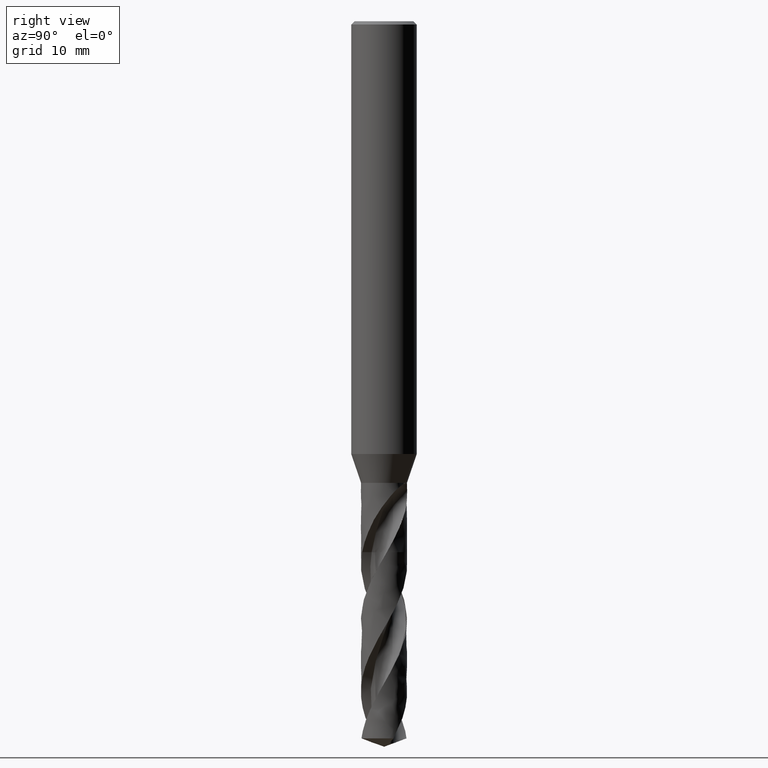
[diagram: clean part render]
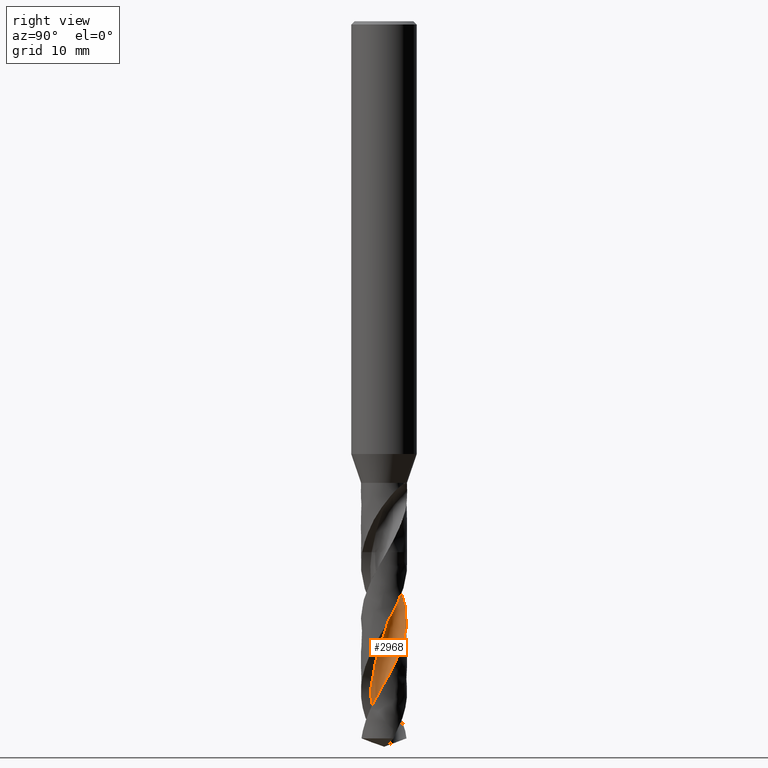
[diagram: same view with one face highlighted and labeled with its STEP entity id]
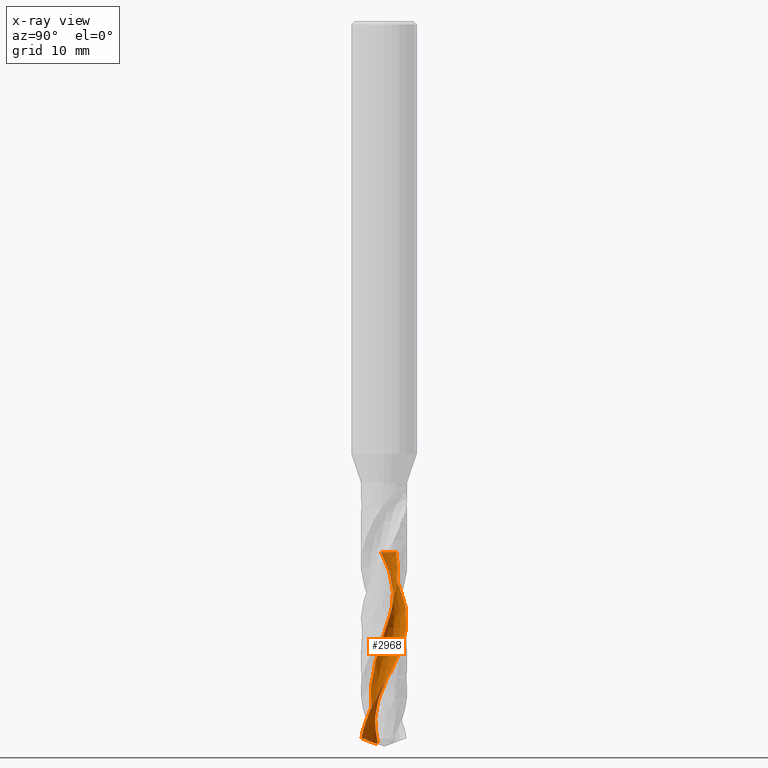
[diagram: x-ray of the same camera — body ghosted, the highlighted face saturated]
A machine part, right view. The second image highlights one B-rep face of the part: STEP entity #2968.
The next image is the same camera in x-ray: the body ghosted, the highlighted face saturated — about 0% of this face is hidden behind the body in this view.
In plain terms, the highlighted face is a freeform B-spline surface patch.
Its self-contained STEP definition (entity closure, byte-faithful):
#1539 = VERTEX_POINT('', #1540);
#1540 = CARTESIAN_POINT('', (-0.560653576666516, 1.12535612456712, -48.3));
#1546 = EDGE_CURVE('', #1539, #1547, #1549, .T.);
#1547 = VERTEX_POINT('', #1548);
#1548 = CARTESIAN_POINT('', (-2.08448666267482, -0.254784915430249, -48.3));
#1549 = B_SPLINE_CURVE_WITH_KNOTS('', 3, (#1550, #1551, #1552, #1553, #1554, #1555, #1556, #1557, #1558, #1559, #1560, #1561, #1562, #1563, #1564, #1565, #1566, #1567, #1568, #1569, #1570, #1571, #1572, #1573, #1574, #1575, #1576, #1577, #1578, #1579, #1580, #1581, #1582, #1583, #1584, #1585, #1586, #1587, #1588, #1589, #1590, #1591, #1592, #1593, #1594, #1595, #1596, #1597, #1598, #1599, #1600, #1601, #1602, #1603, #1604, #1605, #1606, #1607, #1608, #1609, #1610), .UNSPECIFIED., .F., .U., (4, 3, 3, 3, 3, 3, 3, 3, 3, 3, 3, 3, 3, 3, 3, 3, 3, 3, 3, 3, 4), (0., 0.132213928992966, 0.264236099309341, 0.39607163186552, 0.527724449058752, 0.65919737179293, 0.790492188199215, 0.921609697640625, 1.05254973227521, 1.18331115733999, 1.20922925857439, 1.34144290770711, 1.47346480644018, 1.60530007388277, 1.7369526307869, 1.86842529652929, 1.99971985779418, 2.13083711254439, 2.26177689155326, 2.3925380586584, 2.40342444036958), .UNSPECIFIED.);
#1550 = CARTESIAN_POINT('', (-0.560653576666513, 1.12535612456712, -48.3));
#1551 = CARTESIAN_POINT('', (-0.55540932388341, 1.08159794649404, -48.3));
#1552 = CARTESIAN_POINT('', (-0.55245988058709, 1.03750378603265, -48.3));
#1553 = CARTESIAN_POINT('', (-0.551829550536965, 0.993436984247669, -48.3));
#1554 = CARTESIAN_POINT('', (-0.551200134696539, 0.949434095483477, -48.3));
#1555 = CARTESIAN_POINT('', (-0.552881366382323, 0.90533788673366, -48.3));
#1556 = CARTESIAN_POINT('', (-0.556859432121488, 0.861510664863356, -48.3));
#1557 = CARTESIAN_POINT('', (-0.560831874128837, 0.817745400878655, -48.3));
#1558 = CARTESIAN_POINT('', (-0.567105499460781, 0.774128754200453, -48.3));
#1559 = CARTESIAN_POINT('', (-0.575628907583493, 0.73101808103097, -48.3));
#1560 = CARTESIAN_POINT('', (-0.584140502824058, 0.687967156414416, -48.3));
#1561 = CARTESIAN_POINT('', (-0.594918829086155, 0.645303471542164, -48.3));
#1562 = CARTESIAN_POINT('', (-0.607875822412483, 0.603375608636682, -48.3));
#1563 = CARTESIAN_POINT('', (-0.620815110904573, 0.561505037252776, -48.3));
#1564 = CARTESIAN_POINT('', (-0.635962267880023, 0.520254473386058, -48.3));
#1565 = CARTESIAN_POINT('', (-0.653193871292958, 0.4799600348304, -48.3));
#1566 = CARTESIAN_POINT('', (-0.670402131058062, 0.43972018313823, -48.3));
#1567 = CARTESIAN_POINT('', (-0.689735821643201, 0.400324789764808, -48.3));
#1568 = CARTESIAN_POINT('', (-0.711037833963802, 0.362093988838799, -48.3));
#1569 = CARTESIAN_POINT('', (-0.732311079001325, 0.323914816662977, -48.3));
#1570 = CARTESIAN_POINT('', (-0.755604825035069, 0.286793878400143, -48.3));
#1571 = CARTESIAN_POINT('', (-0.780730292720963, 0.251032013012238, -48.3));
#1572 = CARTESIAN_POINT('', (-0.805821751695566, 0.215318553288676, -48.3));
#1573 = CARTESIAN_POINT('', (-0.832807608374214, 0.180864198995624, -48.3));
#1574 = CARTESIAN_POINT('', (-0.861469751919173, 0.147947424452712, -48.3));
#1575 = CARTESIAN_POINT('', (-0.890092798688707, 0.115075550241137, -48.3));
#1576 = CARTESIAN_POINT('', (-0.920464506143395, 0.0836486731725949, -48.3));
#1577 = CARTESIAN_POINT('', (-0.952340065484604, 0.0539201071587813, -48.3));
#1578 = CARTESIAN_POINT('', (-0.958658090647599, 0.0480276355593198, -48.3));
#1579 = CARTESIAN_POINT('', (-0.965037056963397, 0.042199836450078, -48.3));
#1580 = CARTESIAN_POINT('', (-0.971474940496891, 0.036438558890381, -48.3));
#1581 = CARTESIAN_POINT('', (-1.00431592938558, 0.007049078428625, -48.3));
#1582 = CARTESIAN_POINT('', (-1.03874812602139, -0.0206530825710084, -48.3));
#1583 = CARTESIAN_POINT('', (-1.07448780625579, -0.0464396560103344, -48.3));
#1584 = CARTESIAN_POINT('', (-1.11017565297669, -0.0721888309980257, -48.3));
#1585 = CARTESIAN_POINT('', (-1.14726499277601, -0.0960985567143184, -48.3));
#1586 = CARTESIAN_POINT('', (-1.18545109044768, -0.117972384928194, -48.3));
#1587 = CARTESIAN_POINT('', (-1.2235832067666, -0.139815291447815, -48.3));
#1588 = CARTESIAN_POINT('', (-1.26291318591793, -0.159687763109905, -48.3));
#1589 = CARTESIAN_POINT('', (-1.30311879415282, -0.177426983122257, -48.3));
#1590 = CARTESIAN_POINT('', (-1.34326868142266, -0.195141618344036, -48.3));
#1591 = CARTESIAN_POINT('', (-1.38440118745553, -0.210777205090494, -48.3));
#1592 = CARTESIAN_POINT('', (-1.42618024180106, -0.224205993822735, -48.3));
#1593 = CARTESIAN_POINT('', (-1.46790220889512, -0.237616433345036, -48.3));
#1594 = CARTESIAN_POINT('', (-1.51038234894089, -0.248862565797842, -48.3));
#1595 = CARTESIAN_POINT('', (-1.55327452666382, -0.257852755816016, -48.3));
#1596 = CARTESIAN_POINT('', (-1.59610859885692, -0.266830766929269, -48.3));
#1597 = CARTESIAN_POINT('', (-1.63946969255266, -0.273583295268521, -48.3));
#1598 = CARTESIAN_POINT('', (-1.68300544898726, -0.278055468773699, -48.3));
#1599 = CARTESIAN_POINT('', (-1.72648241263438, -0.28252160283985, -48.3));
#1600 = CARTESIAN_POINT('', (-1.77025109367611, -0.284725626451488, -48.3));
#1601 = CARTESIAN_POINT('', (-1.81395677927016, -0.284649677624623, -48.3));
#1602 = CARTESIAN_POINT('', (-1.85760330637308, -0.284573831599439, -48.3));
#1603 = CARTESIAN_POINT('', (-1.90130467627924, -0.282223993294839, -48.3));
#1604 = CARTESIAN_POINT('', (-1.94470767784651, -0.277619155000391, -48.3));
#1605 = CARTESIAN_POINT('', (-1.98805147438993, -0.273020598058642, -48.3));
#1606 = CARTESIAN_POINT('', (-2.03121425214034, -0.266160841788318, -48.3));
#1607 = CARTESIAN_POINT('', (-2.07384810223631, -0.257095178506502, -48.3));
#1608 = CARTESIAN_POINT('', (-2.07739753802246, -0.256340426364594, -48.3));
#1609 = CARTESIAN_POINT('', (-2.08094379080993, -0.255570323400209, -48.3));
#1610 = CARTESIAN_POINT('', (-2.08448666233068, -0.25478491387789, -48.3));
#1859 = VERTEX_POINT('', #1860);
#1860 = CARTESIAN_POINT('', (-1.1143840650651, -0.581697537418241, -65.5424640990853));
#1885 = EDGE_CURVE('', #1859, #1539, #1886, .T.);
#1886 = B_SPLINE_CURVE_WITH_KNOTS('', 3, (#1887, #1888, #1889, #1890, #1891, #1892, #1893, #1894, #1895, #1896, #1897, #1898, #1899, #1900, #1901, #1902, #1903, #1904, #1905, #1906, #1907, #1908, #1909, #1910, #1911, #1912, #1913, #1914, #1915, #1916, #1917, #1918, #1919, #1920, #1921, #1922, #1923, #1924, #1925, #1926, #1927, #1928, #1929, #1930, #1931, #1932, #1933, #1934), .UNSPECIFIED., .F., .U., (4, 1, 1, 1, 1, 1, 1, 1, 1, 1, 1, 1, 1, 1, 1, 1, 1, 1, 1, 1, 1, 1, 1, 1, 1, 1, 1, 1, 1, 1, 1, 1, 1, 1, 1, 1, 1, 1, 1, 1, 1, 1, 1, 1, 1, 4), (0.507535900914695, 0.775806451612903, 1.16370967741935, 1.55161290322581, 1.93951612903226, 2.32741935483871, 2.71532258064516, 3.10322580645161, 3.49112903225807, 3.87903225806452, 4.26693548387097, 4.65483870967742, 5.04274193548387, 5.43064516129032, 5.81854838709677, 6.20645161290323, 6.59435483870968, 6.98225806451613, 7.37016129032258, 7.75806451612903, 8.14596774193548, 8.53387096774193, 8.92177419354839, 9.30967741935484, 9.69758064516129, 10.0854838709677, 10.4733870967742, 10.8612903225806, 11.2491935483871, 11.6370967741936, 12.025, 12.4129032258065, 12.8008064516129, 13.1887096774194, 13.5766129032258, 13.9645161290323, 14.3524193548387, 14.7403225806452, 15.1282258064516, 15.5161290322581, 15.9040322580645, 16.291935483871, 16.6798387096774, 17.0677419354839, 17.4556451612903, 17.75), .UNSPECIFIED.);
#1887 = CARTESIAN_POINT('', (-1.11438406506511, -0.581697537418236, -65.5424640990853));
#1888 = CARTESIAN_POINT('', (-1.0995417420191, -0.608467072957966, -65.4530405821859));
#1889 = CARTESIAN_POINT('', (-1.06090839098075, -0.672572839950614, -65.2343159900177));
#1890 = CARTESIAN_POINT('', (-0.990767162018504, -0.768600091178977, -64.8862903225806));
#1891 = CARTESIAN_POINT('', (-0.90207305816098, -0.86664777408632, -64.4983870967742));
#1892 = CARTESIAN_POINT('', (-0.803868672580281, -0.954699476826315, -64.1104838709677));
#1893 = CARTESIAN_POINT('', (-0.697257167428728, -1.03185381510442, -63.7225806451613));
#1894 = CARTESIAN_POINT('', (-0.583424300891223, -1.09732819671347, -63.3346774193548));
#1895 = CARTESIAN_POINT('', (-0.463626616468923, -1.15046676358356, -62.9467741935484));
#1896 = CARTESIAN_POINT('', (-0.339177961534545, -1.19074637897946, -62.5588709677419));
#1897 = CARTESIAN_POINT('', (-0.211435780800321, -1.21778142655439, -62.1709677419355));
#1898 = CARTESIAN_POINT('', (-0.0817869694306661, -1.23132716429445, -61.783064516129));
#1899 = CARTESIAN_POINT('', (0.0483664810049813, -1.23128166752406, -61.3951612903226));
#1900 = CARTESIAN_POINT('', (0.177621928879893, -1.21768633413588, -61.0072580645161));
#1901 = CARTESIAN_POINT('', (0.30459047435354, -1.19072495857125, -60.6193548387097));
#1902 = CARTESIAN_POINT('', (0.427911159804835, -1.15072138902621, -60.2314516129032));
#1903 = CARTESIAN_POINT('', (0.546264842185099, -1.09813579684918, -59.8435483870968));
#1904 = CARTESIAN_POINT('', (0.658387604956542, -1.03355959943169, -59.4556451612903));
#1905 = CARTESIAN_POINT('', (0.763083581980553, -0.957709090274114, -59.0677419354839));
#1906 = CARTESIAN_POINT('', (0.859237071722774, -0.871417841618717, -58.6798387096774));
#1907 = CARTESIAN_POINT('', (0.94582382712686, -0.775627956156164, -58.291935483871));
#1908 = CARTESIAN_POINT('', (1.02192141448335, -0.671380254697522, -57.9040322580645));
#1909 = CARTESIAN_POINT('', (1.086718543495, -0.559803496292857, -57.5161290322581));
#1910 = CARTESIAN_POINT('', (1.13952328044354, -0.442102735992004, -57.1282258064516));
#1911 = CARTESIAN_POINT('', (1.17977006681222, -0.319546933216794, -56.7403225806452));
#1912 = CARTESIAN_POINT('', (1.20702547682669, -0.193455930485919, -56.3524193548387));
#1913 = CARTESIAN_POINT('', (1.22099265905178, -0.0651869279513178, -55.9645161290323));
#1914 = CARTESIAN_POINT('', (1.22151441932947, 0.0638794161767352, -55.5766129032258));
#1915 = CARTESIAN_POINT('', (1.20857491486327, 0.192353125756712, -55.1887096774194));
#1916 = CARTESIAN_POINT('', (1.18229994204639, 0.318849151519035, -54.8008064516129));
#1917 = CARTESIAN_POINT('', (1.1429558135916, 0.442001583537746, -54.4129032258065));
#1918 = CARTESIAN_POINT('', (1.09094683354375, 0.560477694428853, -54.025));
#1919 = CARTESIAN_POINT('', (1.02681139173754, 0.672991677598288, -53.6370967741936));
#1920 = CARTESIAN_POINT('', (0.951216712092303, 0.778317947325755, -53.2491935483871));
#1921 = CARTESIAN_POINT('', (0.864952301725396, 0.875303871098981, -52.8612903225807));
#1922 = CARTESIAN_POINT('', (0.768922160037385, 0.96288180945239, -52.4733870967742));
#1923 = CARTESIAN_POINT('', (0.664135818858029, 1.0400803443242, -52.0854838709677));
#1924 = CARTESIAN_POINT('', (0.551698295268045, 1.10603458454947, -51.6975806451613));
#1925 = CARTESIAN_POINT('', (0.432799051746362, 1.15999544290679, -51.3096774193548));
#1926 = CARTESIAN_POINT('', (0.308700058749145, 1.20133779650207, -50.9217741935484));
#1927 = CARTESIAN_POINT('', (0.180723098577349, 1.22956742102554, -50.5338709677419));
#1928 = CARTESIAN_POINT('', (0.0502363274988873, 1.24432671651016, -50.1459677419355));
#1929 = CARTESIAN_POINT('', (-0.0813593950716393, 1.24539881957246, -49.758064516129));
#1930 = CARTESIAN_POINT('', (-0.212645704974484, 1.23271132960483, -49.3701612903226));
#1931 = CARTESIAN_POINT('', (-0.342197996415126, 1.20633484205865, -48.9822580645161));
#1932 = CARTESIAN_POINT('', (-0.45845026669922, 1.16969678691021, -48.6255376344086));
#1933 = CARTESIAN_POINT('', (-0.530217320608145, 1.13957029541415, -48.3981182795699));
#1934 = CARTESIAN_POINT('', (-0.560653576666516, 1.12535612456712, -48.3));
#2939 = EDGE_CURVE('', #1547, #2940, #2942, .T.);
#2940 = VERTEX_POINT('', #2941);
#2941 = CARTESIAN_POINT('', (-2.1, 3.11323264897681E-15, -48.7429475526228));
#2942 = B_SPLINE_CURVE_WITH_KNOTS('', 3, (#2943, #2944, #2945, #2946, #2947, #2948, #2949), .UNSPECIFIED., .F., .U., (4, 3, 4), (2.52450529147986, 2.88697491726685, 3.03576779609375), .UNSPECIFIED.);
#2943 = CARTESIAN_POINT('', (-2.08448666267482, -0.254784915430249, -48.3));
#2944 = CARTESIAN_POINT('', (-2.09181057871528, -0.194865334716009, -48.4046625617698));
#2945 = CARTESIAN_POINT('', (-2.0965495181874, -0.134619354490136, -48.5093728242617));
#2946 = CARTESIAN_POINT('', (-2.09868497121802, -0.0743060669367406, -48.6140437128612));
#2947 = CARTESIAN_POINT('', (-2.09956156936976, -0.0495476125777044, -48.6570108519981));
#2948 = CARTESIAN_POINT('', (-2.1, -0.0247730127155035, -48.699979862748));
#2949 = CARTESIAN_POINT('', (-2.1, 3.54758859661253E-15, -48.7429475526228));
#2968 = ADVANCED_FACE('', (#2969), #3150, .T.);
#2969 = FACE_OUTER_BOUND('', #2970, .T.);
#2970 = EDGE_LOOP('', (#2971, #2972, #2973, #3078, #3090, #3139, #3149));
#2971 = ORIENTED_EDGE('', *, *, #1546, .F.);
#2972 = ORIENTED_EDGE('', *, *, #1885, .F.);
#2973 = ORIENTED_EDGE('', *, *, #2974, .T.);
#2974 = EDGE_CURVE('', #1859, #2975, #2977, .T.);
#2975 = VERTEX_POINT('', #2976);
#2976 = CARTESIAN_POINT('', (0.464884854597766, -2.04789698763527, -65.235662508041));
#2977 = B_SPLINE_CURVE_WITH_KNOTS('', 3, (#2978, #2979, #2980, #2981, #2982, #2983, #2984, #2985, #2986, #2987, #2988, #2989, #2990, #2991, #2992, #2993, #2994, #2995, #2996, #2997, #2998, #2999, #3000, #3001, #3002, #3003, #3004, #3005, #3006, #3007, #3008, #3009, #3010, #3011, #3012, #3013, #3014, #3015, #3016, #3017, #3018, #3019, #3020, #3021, #3022, #3023, #3024, #3025, #3026, #3027, #3028, #3029, #3030, #3031, #3032, #3033, #3034, #3035, #3036, #3037, #3038, #3039, #3040, #3041, #3042, #3043, #3044, #3045, #3046, #3047, #3048, #3049, #3050, #3051, #3052, #3053, #3054, #3055, #3056, #3057, #3058, #3059, #3060, #3061, #3062, #3063, #3064, #3065, #3066, #3067, #3068, #3069, #3070, #3071, #3072, #3073, #3074, #3075, #3076, #3077), .UNSPECIFIED., .F., .U., (4, 3, 3, 3, 3, 3, 3, 3, 3, 3, 3, 3, 3, 3, 3, 3, 3, 3, 3, 3, 3, 3, 3, 3, 3, 3, 3, 3, 3, 3, 3, 3, 3, 4), (0., 0.0877020594782348, 0.175304624951683, 0.262768848000503, 0.350056575069381, 0.408226329987675, 0.466339777054132, 0.52440599049218, 0.582441905714571, 0.64047138750818, 0.698521776105007, 0.756618384389807, 0.814778789946546, 0.873009298198742, 0.931304944141766, 0.989652524170597, 1.04803487153488, 1.10643463202185, 1.16483667051661, 1.22322910271021, 1.28187737109649, 1.30788936817547, 1.39633573165976, 1.48454131213651, 1.57254988681679, 1.66039718948097, 1.74811133899409, 1.83571401855016, 1.9232217411957, 2.0542326450957, 2.18500682780809, 2.3155735193173, 2.44594977524001, 2.50562304196107), .UNSPECIFIED.);
#2978 = CARTESIAN_POINT('', (-1.1143840650651, -0.581697537418238, -65.5424640990853));
#2979 = CARTESIAN_POINT('', (-1.08769700797168, -0.574838043213236, -65.5522301749674));
#2980 = CARTESIAN_POINT('', (-1.06063826685804, -0.56916748217257, -65.5619001323148));
#2981 = CARTESIAN_POINT('', (-1.0333422061798, -0.564750181964094, -65.5713890967214));
#2982 = CARTESIAN_POINT('', (-1.00607711164315, -0.560337892982159, -65.5808672963287));
#2983 = CARTESIAN_POINT('', (-0.97852255874418, -0.557167850476685, -65.5901834229118));
#2984 = CARTESIAN_POINT('', (-0.950823257023301, -0.555289891224138, -65.599233941967));
#2985 = CARTESIAN_POINT('', (-0.923167698183009, -0.553414897654558, -65.6082701683958));
#2986 = CARTESIAN_POINT('', (-0.895311079399115, -0.552824529573125, -65.61706026617));
#2987 = CARTESIAN_POINT('', (-0.867407868577561, -0.553549135011568, -65.625479571161));
#2988 = CARTESIAN_POINT('', (-0.839560964259007, -0.554272278252754, -65.6338818866513));
#2989 = CARTESIAN_POINT('', (-0.811606880380622, -0.556307293353359, -65.6419330411328));
#2990 = CARTESIAN_POINT('', (-0.783709320481416, -0.559658185083582, -65.6494874834123));
#2991 = CARTESIAN_POINT('', (-0.76511799869256, -0.561891265921521, -65.6545218687801));
#2992 = CARTESIAN_POINT('', (-0.746528127590856, -0.564710715067775, -65.6593417328981));
#2993 = CARTESIAN_POINT('', (-0.72799053477613, -0.568109219605753, -65.6638998850959));
#2994 = CARTESIAN_POINT('', (-0.709470886201175, -0.571504434418851, -65.6684536250392));
#2995 = CARTESIAN_POINT('', (-0.690983509902296, -0.57548133726105, -65.6727508816706));
#2996 = CARTESIAN_POINT('', (-0.672580717389366, -0.58002428531461, -65.6767434078317));
#2997 = CARTESIAN_POINT('', (-0.654192882355421, -0.584563540936709, -65.6807326889349));
#2998 = CARTESIAN_POINT('', (-0.635869062590545, -0.589673052144663, -65.6844219227288));
#2999 = CARTESIAN_POINT('', (-0.617662430555092, -0.595327679718663, -65.6877648884008));
#3000 = CARTESIAN_POINT('', (-0.599465298509927, -0.600979356779522, -65.6911061097556));
#3001 = CARTESIAN_POINT('', (-0.581364540916165, -0.607182047698661, -65.6941049320394));
#3002 = CARTESIAN_POINT('', (-0.56341301116913, -0.613900552711166, -65.6967212459635));
#3003 = CARTESIAN_POINT('', (-0.545463471394815, -0.620618312960306, -65.6993372698625));
#3004 = CARTESIAN_POINT('', (-0.527642569762591, -0.627859429050759, -65.7015735883044));
#3005 = CARTESIAN_POINT('', (-0.510001005177762, -0.635579197739607, -65.7034006713088));
#3006 = CARTESIAN_POINT('', (-0.492353084707823, -0.643301747698938, -65.7052284125728));
#3007 = CARTESIAN_POINT('', (-0.474864716252504, -0.651511876931995, -65.7066485038394));
#3008 = CARTESIAN_POINT('', (-0.457582131511554, -0.660157412575654, -65.7076457455463));
#3009 = CARTESIAN_POINT('', (-0.44028578638599, -0.668809831790113, -65.7086437812565));
#3010 = CARTESIAN_POINT('', (-0.423176841959309, -0.677907493000582, -65.7092193557441));
#3011 = CARTESIAN_POINT('', (-0.406294791910139, -0.687394148623517, -65.7093734319373));
#3012 = CARTESIAN_POINT('', (-0.389394203278946, -0.696891221769375, -65.7095276773252));
#3013 = CARTESIAN_POINT('', (-0.372704017355244, -0.706787426952211, -65.7092598154118));
#3014 = CARTESIAN_POINT('', (-0.356255440016803, -0.717026501043473, -65.7085862047281));
#3015 = CARTESIAN_POINT('', (-0.339787036654166, -0.727277916635554, -65.7079117821187));
#3016 = CARTESIAN_POINT('', (-0.323545925714368, -0.737882043462596, -65.7068303154106));
#3017 = CARTESIAN_POINT('', (-0.307554671088377, -0.748786321409527, -65.7053704610497));
#3018 = CARTESIAN_POINT('', (-0.291545528358176, -0.759702797077325, -65.7039089736696));
#3019 = CARTESIAN_POINT('', (-0.275774150153045, -0.770928511095686, -65.7020674373229));
#3020 = CARTESIAN_POINT('', (-0.260255306335799, -0.782417171015178, -65.6998824391184));
#3021 = CARTESIAN_POINT('', (-0.244722637181284, -0.793916065885162, -65.6976954943553));
#3022 = CARTESIAN_POINT('', (-0.229432485656722, -0.805685979698594, -65.6951633122829));
#3023 = CARTESIAN_POINT('', (-0.214393468900676, -0.817688016439803, -65.6923260229488));
#3024 = CARTESIAN_POINT('', (-0.199345490906819, -0.829697204785881, -65.6894870429707));
#3025 = CARTESIAN_POINT('', (-0.184540432694363, -0.841945507469977, -65.6863412223114));
#3026 = CARTESIAN_POINT('', (-0.1699826493187, -0.854401338046863, -65.6829287039483));
#3027 = CARTESIAN_POINT('', (-0.155420523937627, -0.866860883700581, -65.6795151677672));
#3028 = CARTESIAN_POINT('', (-0.141098939621507, -0.879533937711756, -65.6758333153744));
#3029 = CARTESIAN_POINT('', (-0.127019707206142, -0.892395378094705, -65.6719209543685));
#3030 = CARTESIAN_POINT('', (-0.112939925600151, -0.905257320165692, -65.6680084407526));
#3031 = CARTESIAN_POINT('', (-0.0990969323706529, -0.918312763697784, -65.6638639323359));
#3032 = CARTESIAN_POINT('', (-0.0854913326297931, -0.931541887913952, -65.6595216409052));
#3033 = CARTESIAN_POINT('', (-0.0718879708157564, -0.944768836128143, -65.6551800637194));
#3034 = CARTESIAN_POINT('', (-0.0585173392127127, -0.958173884610972, -65.6506393375065));
#3035 = CARTESIAN_POINT('', (-0.0453797660026459, -0.971741333837005, -65.6459296245839));
#3036 = CARTESIAN_POINT('', (-0.0321846328214522, -0.985368226460478, -65.6411992768807));
#3037 = CARTESIAN_POINT('', (-0.0192207237730948, -0.999162978436806, -65.636297070356));
#3038 = CARTESIAN_POINT('', (-0.00648868338850006, -1.01311279791285, -65.631249534733));
#3039 = CARTESIAN_POINT('', (-0.000841700000817797, -1.01929989726714, -65.6290108244438));
#3040 = CARTESIAN_POINT('', (0.00476014846414565, -1.02551805713475, -65.6267432876094));
#3041 = CARTESIAN_POINT('', (0.0103167670840975, -1.03176631146325, -65.6244490010278));
#3042 = CARTESIAN_POINT('', (0.0292104609712454, -1.0530117149516, -65.616647935069));
#3043 = CARTESIAN_POINT('', (0.0475881286137774, -1.07461207374201, -65.6085360260351));
#3044 = CARTESIAN_POINT('', (0.0654434029058444, -1.09653518396891, -65.6001836679183));
#3045 = CARTESIAN_POINT('', (0.0832500686799914, -1.11839861155645, -65.5918540479427));
#3046 = CARTESIAN_POINT('', (0.100546141826017, -1.14059423563043, -65.5832808699544));
#3047 = CARTESIAN_POINT('', (0.117320843141346, -1.16309576153221, -65.5745195853067));
#3048 = CARTESIAN_POINT('', (0.13405807842136, -1.18554703062476, -65.5657778688525));
#3049 = CARTESIAN_POINT('', (0.150284030634818, -1.20831341190261, -65.5568446223614));
#3050 = CARTESIAN_POINT('', (0.165983603028144, -1.23137156110361, -65.5477640212061));
#3051 = CARTESIAN_POINT('', (0.181654406614555, -1.25438745721482, -65.538700059871));
#3052 = CARTESIAN_POINT('', (0.196807731407596, -1.27770442842935, -65.529485075666));
#3053 = CARTESIAN_POINT('', (0.211424511749981, -1.30130016359833, -65.5201549112415));
#3054 = CARTESIAN_POINT('', (0.226019136940167, -1.32486013390721, -65.5108388888652));
#3055 = CARTESIAN_POINT('', (0.240085267729783, -1.3487085076158, -65.5014037941693));
#3056 = CARTESIAN_POINT('', (0.253600257696194, -1.37282270432058, -65.4918793980308));
#3057 = CARTESIAN_POINT('', (0.26709807237949, -1.39690625593007, -65.4823671058007));
#3058 = CARTESIAN_POINT('', (0.280052158772176, -1.42126578379587, -65.4727613898877));
#3059 = CARTESIAN_POINT('', (0.292436642086404, -1.44587748220518, -65.4630876606548));
#3060 = CARTESIAN_POINT('', (0.304807701241919, -1.47046250276793, -65.4534244172592));
#3061 = CARTESIAN_POINT('', (0.316616062818096, -1.49531051491111, -65.443688786783));
#3062 = CARTESIAN_POINT('', (0.327832927957597, -1.52039571377789, -65.433903116245));
#3063 = CARTESIAN_POINT('', (0.344626093136892, -1.55795165145622, -65.4192526430787));
#3064 = CARTESIAN_POINT('', (0.360108818722626, -1.59607431608054, -65.4044768918222));
#3065 = CARTESIAN_POINT('', (0.374173099184096, -1.63466505200684, -65.389642933099));
#3066 = CARTESIAN_POINT('', (0.388211967156418, -1.67318605904365, -65.3748357775825));
#3067 = CARTESIAN_POINT('', (0.400853720667591, -1.71221889564303, -65.3599529874408));
#3068 = CARTESIAN_POINT('', (0.411979213085297, -1.75164643788681, -65.3450566126253));
#3069 = CARTESIAN_POINT('', (0.423087053381155, -1.79101142291929, -65.3301838729545));
#3070 = CARTESIAN_POINT('', (0.432697474159817, -1.8308210502423, -65.3152781690556));
#3071 = CARTESIAN_POINT('', (0.440682691541863, -1.87093439729139, -65.3004006612051));
#3072 = CARTESIAN_POINT('', (0.448656262235632, -1.91098923777434, -65.2855448526632));
#3073 = CARTESIAN_POINT('', (0.455020429134249, -1.95140506744815, -65.2706955636037));
#3074 = CARTESIAN_POINT('', (0.459642365171857, -1.99201138048653, -65.2559162479277));
#3075 = CARTESIAN_POINT('', (0.461757827224267, -2.01059690690274, -65.2491517489778));
#3076 = CARTESIAN_POINT('', (0.463509596509939, -2.02923171715394, -65.2423983644051));
#3077 = CARTESIAN_POINT('', (0.464884854597767, -2.04789698763527, -65.235662508041));
#3078 = ORIENTED_EDGE('', *, *, #3079, .F.);
#3079 = EDGE_CURVE('', #3080, #2975, #3082, .T.);
#3080 = VERTEX_POINT('', #3081);
#3081 = CARTESIAN_POINT('', (0.829800424294611, -1.92910115230914, -64.5576646751967));
#3082 = B_SPLINE_CURVE_WITH_KNOTS('', 3, (#3083, #3084, #3085, #3086, #3087, #3088, #3089), .UNSPECIFIED., .F., .U., (4, 3, 4), (0., 0.442744778876593, 0.779268776366327), .UNSPECIFIED.);
#3083 = CARTESIAN_POINT('', (0.829800424294609, -1.92910115230915, -64.5576646751967));
#3084 = CARTESIAN_POINT('', (0.762934884840032, -1.95786327965725, -64.6860471749548));
#3085 = CARTESIAN_POINT('', (0.694558581379996, -1.98315006754872, -64.8144770437613));
#3086 = CARTESIAN_POINT('', (0.625084858137187, -2.00481144253696, -64.9428690730804));
#3087 = CARTESIAN_POINT('', (0.572278871072838, -2.02127594499967, -65.0404580250312));
#3088 = CARTESIAN_POINT('', (0.518816609954807, -2.03565415686851, -65.138068274026));
#3089 = CARTESIAN_POINT('', (0.464884854597766, -2.04789698763527, -65.235662508041));
#3090 = ORIENTED_EDGE('', *, *, #3091, .T.);
#3091 = EDGE_CURVE('', #3080, #3092, #3094, .T.);
#3092 = VERTEX_POINT('', #3093);
#3093 = CARTESIAN_POINT('', (-2.07462563799923, 0.32546653000932, -49.3098579151384));
#3094 = B_SPLINE_CURVE_WITH_KNOTS('', 3, (#3095, #3096, #3097, #3098, #3099, #3100, #3101, #3102, #3103, #3104, #3105, #3106, #3107, #3108, #3109, #3110, #3111, #3112, #3113, #3114, #3115, #3116, #3117, #3118, #3119, #3120, #3121, #3122, #3123, #3124, #3125, #3126, #3127, #3128, #3129, #3130, #3131, #3132, #3133, #3134, #3135, #3136, #3137, #3138), .UNSPECIFIED., .F., .U., (4, 1, 1, 1, 1, 1, 1, 1, 1, 1, 1, 1, 1, 1, 1, 1, 1, 1, 1, 1, 1, 1, 1, 1, 1, 1, 1, 1, 1, 1, 1, 1, 1, 1, 1, 1, 1, 1, 1, 1, 1, 4), (1.49233532480333, 1.55161290322581, 1.93951612903226, 2.32741935483871, 2.71532258064516, 3.10322580645161, 3.49112903225807, 3.87903225806452, 4.26693548387097, 4.65483870967742, 5.04274193548387, 5.43064516129032, 5.81854838709677, 6.20645161290323, 6.59435483870968, 6.98225806451613, 7.37016129032258, 7.75806451612903, 8.14596774193548, 8.53387096774193, 8.92177419354839, 9.30967741935484, 9.69758064516129, 10.0854838709677, 10.4733870967742, 10.8612903225806, 11.2491935483871, 11.6370967741936, 12.025, 12.4129032258065, 12.8008064516129, 13.1887096774194, 13.5766129032258, 13.9645161290323, 14.3524193548387, 14.7403225806452, 15.1282258064516, 15.5161290322581, 15.9040322580645, 16.291935483871, 16.6798387096774, 16.7401420848616), .UNSPECIFIED.);
#3095 = CARTESIAN_POINT('', (0.829800424294611, -1.92910115230914, -64.5576646751967));
#3096 = CARTESIAN_POINT('', (0.840076227584029, -1.92440545157254, -64.5379054823892));
#3097 = CARTESIAN_POINT('', (0.917298185054526, -1.88836920196036, -64.3888452143129));
#3098 = CARTESIAN_POINT('', (1.05718287620604, -1.81250770738883, -64.1104838709677));
#3099 = CARTESIAN_POINT('', (1.2396139044675, -1.68732107401125, -63.7225806451613));
#3100 = CARTESIAN_POINT('', (1.40763383972481, -1.54409768110982, -63.3346774193548));
#3101 = CARTESIAN_POINT('', (1.55949388992939, -1.38445630783564, -62.9467741935484));
#3102 = CARTESIAN_POINT('', (1.69362301232786, -1.21018149442767, -62.5588709677419));
#3103 = CARTESIAN_POINT('', (1.80864326051813, -1.02320455298405, -62.1709677419355));
#3104 = CARTESIAN_POINT('', (1.90338309233442, -0.825583064058363, -61.783064516129));
#3105 = CARTESIAN_POINT('', (1.97688856083658, -0.619479247627016, -61.3951612903226));
#3106 = CARTESIAN_POINT('', (2.02843228098004, -0.407137375118859, -61.0072580645161));
#3107 = CARTESIAN_POINT('', (2.05752009930914, -0.190860458639239, -60.6193548387097));
#3108 = CARTESIAN_POINT('', (2.06389541219799, 0.0270135576587915, -60.2314516129032));
#3109 = CARTESIAN_POINT('', (2.04754110124045, 0.244135871285159, -59.8435483870968));
#3110 = CARTESIAN_POINT('', (2.0086790763739, 0.458170927326011, -59.4556451612903));
#3111 = CARTESIAN_POINT('', (1.94776743957931, 0.666820324120857, -59.0677419354839));
#3112 = CARTESIAN_POINT('', (1.86549530393582, 0.867846289149089, -58.6798387096774));
#3113 = CARTESIAN_POINT('', (1.76277532435331, 1.05909450034819, -58.291935483871));
#3114 = CARTESIAN_POINT('', (1.64073401725946, 1.23851603484108, -57.9040322580645));
#3115 = CARTESIAN_POINT('', (1.50069996671715, 1.40418823568134, -57.5161290322581));
#3116 = CARTESIAN_POINT('', (1.34419003373227, 1.55433429766275, -57.1282258064516));
#3117 = CARTESIAN_POINT('', (1.17289370372729, 1.68734138539023, -56.7403225806452));
#3118 = CARTESIAN_POINT('', (0.988655724157933, 1.80177711056865, -56.3524193548387));
#3119 = CARTESIAN_POINT('', (0.793457199903469, 1.89640421072011, -55.9645161290323));
#3120 = CARTESIAN_POINT('', (0.589395328240732, 1.97019328816265, -55.5766129032258));
#3121 = CARTESIAN_POINT('', (0.378661967802819, 2.02233348593897, -55.1887096774194));
#3122 = CARTESIAN_POINT('', (0.163521246823539, 2.05224099632833, -54.8008064516129));
#3123 = CARTESIAN_POINT('', (-0.0537135749129736, 2.0595653174557, -54.4129032258065));
#3124 = CARTESIAN_POINT('', (-0.270703768740107, 2.04419319416985, -54.025));
#3125 = CARTESIAN_POINT('', (-0.485109097380497, 2.0062502006317, -53.6370967741936));
#3126 = CARTESIAN_POINT('', (-0.694611842456092, 1.9460999437588, -53.2491935483871));
#3127 = CARTESIAN_POINT('', (-0.896940667498201, 1.86434088865854, -52.8612903225807));
#3128 = CARTESIAN_POINT('', (-1.08989408550145, 1.76180082918877, -52.4733870967742));
#3129 = CARTESIAN_POINT('', (-1.27136330243775, 1.63952904894056, -52.0854838709677));
#3130 = CARTESIAN_POINT('', (-1.43935421423525, 1.49878623890159, -51.6975806451613));
#3131 = CARTESIAN_POINT('', (-1.59200833654189, 1.34103226197659, -51.3096774193548));
#3132 = CARTESIAN_POINT('', (-1.7276224738315, 1.16791186508104, -50.9217741935484));
#3133 = CARTESIAN_POINT('', (-1.84466687603525, 0.981238496785114, -50.5338709677419));
#3134 = CARTESIAN_POINT('', (-1.94180190101914, 0.782976267336611, -50.1459677419355));
#3135 = CARTESIAN_POINT('', (-2.01789225398834, 0.575220627711821, -49.758064516129));
#3136 = CARTESIAN_POINT('', (-2.05678337777885, 0.420714236932633, -49.47936124053));
#3137 = CARTESIAN_POINT('', (-2.07259042564241, 0.336778231253973, -49.3299590401998));
#3138 = CARTESIAN_POINT('', (-2.07462563799923, 0.325466530009321, -49.3098579151384));
#3139 = ORIENTED_EDGE('', *, *, #3140, .T.);
#3140 = EDGE_CURVE('', #3092, #2940, #3141, .T.);
#3141 = B_SPLINE_CURVE_WITH_KNOTS('', 3, (#3142, #3143, #3144, #3145, #3146, #3147, #3148), .UNSPECIFIED., .F., .U., (4, 3, 4), (0., 0.442341237642631, 0.65429436443768), .UNSPECIFIED.);
#3142 = CARTESIAN_POINT('', (-2.07462563799923, 0.325466530009289, -49.3098579151383));
#3143 = CARTESIAN_POINT('', (-2.08603592814659, 0.252733765518719, -49.182106627798));
#3144 = CARTESIAN_POINT('', (-2.09362140313959, 0.179366355850889, -49.0543164331272));
#3145 = CARTESIAN_POINT('', (-2.09733215664316, 0.105819774666969, -48.9265753987123));
#3146 = CARTESIAN_POINT('', (-2.09911020883661, 0.0705790452923047, -48.8653667449395));
#3147 = CARTESIAN_POINT('', (-2.1, 0.0352887688347932, -48.8041543542649));
#3148 = CARTESIAN_POINT('', (-2.1, 3.54758859661253E-15, -48.7429475526228));
#3149 = ORIENTED_EDGE('', *, *, #2939, .F.);
#3150 = (
   BOUNDED_SURFACE ()
   B_SPLINE_SURFACE (3, 2, ((#3151, #3152, #3153, #3154, #3155), (#3156, #3157, #3158, #3159, #3160), (#3161, #3162, #3163, #3164, #3165), (#3166, #3167, #3168, #3169, #3170), (#3171, #3172, #3173, #3174, #3175), (#3176, #3177, #3178, #3179, #3180), (#3181, #3182, #3183, #3184, #3185), (#3186, #3187, #3188, #3189, #3190), (#3191, #3192, #3193, #3194, #3195), (#3196, #3197, #3198, #3199, #3200), (#3201, #3202, #3203, #3204, #3205), (#3206, #3207, #3208, #3209, #3210), (#3211, #3212, #3213, #3214, #3215), (#3216, #3217, #3218, #3219, #3220), (#3221, #3222, #3223, #3224, #3225), (#3226, #3227, #3228, #3229, #3230), (#3231, #3232, #3233, #3234, #3235), (#3236, #3237, #3238, #3239, #3240), (#3241, #3242, #3243, #3244, #3245), (#3246, #3247, #3248, #3249, #3250), (#3251, #3252, #3253, #3254, #3255), (#3256, #3257, #3258, #3259, #3260), (#3261, #3262, #3263, #3264, #3265), (#3266, #3267, #3268, #3269, #3270), (#3271, #3272, #3273, #3274, #3275), (#3276, #3277, #3278, #3279, #3280), (#3281, #3282, #3283, #3284, #3285), (#3286, #3287, #3288, #3289, #3290), (#3291, #3292, #3293, #3294, #3295), (#3296, #3297, #3298, #3299, #3300), (#3301, #3302, #3303, #3304, #3305), (#3306, #3307, #3308, #3309, #3310), (#3311, #3312, #3313, #3314, #3315), (#3316, #3317, #3318, #3319, #3320), (#3321, #3322, #3323, #3324, #3325), (#3326, #3327, #3328, #3329, #3330), (#3331, #3332, #3333, #3334, #3335), (#3336, #3337, #3338, #3339, #3340), (#3341, #3342, #3343, #3344, #3345), (#3346, #3347, #3348, #3349, #3350), (#3351, #3352, #3353, #3354, #3355), (#3356, #3357, #3358, #3359, #3360), (#3361, #3362, #3363, #3364, #3365), (#3366, #3367, #3368, #3369, #3370), (#3371, #3372, #3373, #3374, #3375), (#3376, #3377, #3378, #3379, #3380), (#3381, #3382, #3383, #3384, #3385), (#3386, #3387, #3388, #3389, #3390)), .UNSPECIFIED., .F., .F., .U.)
   B_SPLINE_SURFACE_WITH_KNOTS ((4, 1, 1, 1, 1, 1, 1, 1, 1, 1, 1, 1, 1, 1, 1, 1, 1, 1, 1, 1, 1, 1, 1, 1, 1, 1, 1, 1, 1, 1, 1, 1, 1, 1, 1, 1, 1, 1, 1, 1, 1, 1, 1, 1, 1, 4), (3, 2, 3), (0.340472322669252, 0.775806451612903, 1.16370967741935, 1.55161290322581, 1.93951612903226, 2.32741935483871, 2.71532258064516, 3.10322580645161, 3.49112903225807, 3.87903225806452, 4.26693548387097, 4.65483870967742, 5.04274193548387, 5.43064516129032, 5.81854838709677, 6.20645161290323, 6.59435483870968, 6.98225806451613, 7.37016129032258, 7.75806451612903, 8.14596774193548, 8.53387096774193, 8.92177419354839, 9.30967741935484, 9.69758064516129, 10.0854838709677, 10.4733870967742, 10.8612903225806, 11.2491935483871, 11.6370967741936, 12.025, 12.4129032258065, 12.8008064516129, 13.1887096774194, 13.5766129032258, 13.9645161290323, 14.3524193548387, 14.7403225806452, 15.1282258064516, 15.5161290322581, 15.9040322580645, 16.291935483871, 16.6798387096774, 17.0677419354839, 17.4556451612903, 17.7500000000001), (0., 0.5, 1.), .UNSPECIFIED.)
   GEOMETRIC_REPRESENTATION_ITEM ()
   RATIONAL_B_SPLINE_SURFACE (((1., 0.887010833178222, 1., 0.887010833178222, 1.), (1., 0.887010833178222, 1., 0.887010833178222, 1.), (1., 0.887010833178222, 1., 0.887010833178222, 1.), (1., 0.887010833178222, 1., 0.887010833178222, 1.), (1., 0.887010833178222, 1., 0.887010833178222, 1.), (1., 0.887010833178222, 1., 0.887010833178222, 1.), (1., 0.887010833178222, 1., 0.887010833178222, 1.), (1., 0.887010833178222, 1., 0.887010833178222, 1.), (1., 0.887010833178222, 1., 0.887010833178222, 1.), (1., 0.887010833178222, 1., 0.887010833178222, 1.), (1., 0.887010833178222, 1., 0.887010833178222, 1.), (1., 0.887010833178222, 1., 0.887010833178222, 1.), (1., 0.887010833178222, 1., 0.887010833178222, 1.), (1., 0.887010833178221, 1., 0.887010833178221, 1.), (1., 0.887010833178222, 1., 0.887010833178222, 1.), (1., 0.887010833178222, 1., 0.887010833178222, 1.), (1., 0.887010833178222, 1., 0.887010833178222, 1.), (1., 0.887010833178222, 1., 0.887010833178222, 1.), (1., 0.887010833178222, 1., 0.887010833178222, 1.), (1., 0.887010833178221, 1., 0.887010833178221, 1.), (1., 0.887010833178222, 1., 0.887010833178222, 1.), (1., 0.887010833178222, 1., 0.887010833178222, 1.), (1., 0.887010833178222, 1., 0.887010833178222, 1.), (1., 0.887010833178221, 1., 0.887010833178221, 1.), (1., 0.887010833178222, 1., 0.887010833178222, 1.), (1., 0.887010833178222, 1., 0.887010833178222, 1.), (1., 0.887010833178221, 1., 0.887010833178221, 1.), (1., 0.887010833178222, 1., 0.887010833178222, 1.), (1., 0.887010833178222, 1., 0.887010833178222, 1.), (1., 0.887010833178221, 1., 0.887010833178221, 1.), (1., 0.887010833178222, 1., 0.887010833178222, 1.), (1., 0.887010833178222, 1., 0.887010833178222, 1.), (1., 0.887010833178222, 1., 0.887010833178222, 1.), (1., 0.887010833178222, 1., 0.887010833178222, 1.), (1., 0.887010833178222, 1., 0.887010833178222, 1.), (1., 0.887010833178222, 1., 0.887010833178222, 1.), (1., 0.887010833178222, 1., 0.887010833178222, 1.), (1., 0.887010833178222, 1., 0.887010833178222, 1.), (1., 0.887010833178221, 1., 0.887010833178221, 1.), (1., 0.887010833178221, 1., 0.887010833178221, 1.), (1., 0.887010833178222, 1., 0.887010833178222, 1.), (1., 0.887010833178222, 1., 0.887010833178222, 1.), (1., 0.887010833178222, 1., 0.887010833178222, 1.), (1., 0.887010833178222, 1., 0.887010833178222, 1.), (1., 0.887010833178222, 1., 0.887010833178222, 1.), (1., 0.887010833178222, 1., 0.887010833178222, 1.), (1., 0.887010833178222, 1., 0.887010833178222, 1.), (1., 0.887010833178222, 1., 0.887010833178222, 1.)))
   REPRESENTATION_ITEM ('')
   SURFACE ()
);
#3151 = CARTESIAN_POINT('', (0.195816954134475, -2.1068003091909, -65.7095276773308));
#3152 = CARTESIAN_POINT('', (0.362321556699461, -1.47166589205199, -65.7095276773308));
#3153 = CARTESIAN_POINT('', (-0.0624469829229022, -0.970975170890918, -65.7095276773308));
#3154 = CARTESIAN_POINT('', (-0.487215522545265, -0.470284449729848, -65.7095276773308));
#3155 = CARTESIAN_POINT('', (-1.14099457557152, -0.531050067753555, -65.7095276773308));
#3156 = CARTESIAN_POINT('', (0.278836813793986, -2.09692870079173, -65.5644163010162));
#3157 = CARTESIAN_POINT('', (0.420084770181067, -1.45586155715641, -65.5644163010162));
#3158 = CARTESIAN_POINT('', (-0.0240301915879442, -0.972456997222195, -65.5644163010162));
#3159 = CARTESIAN_POINT('', (-0.468145153356955, -0.489052437287983, -65.5644163010162));
#3160 = CARTESIAN_POINT('', (-1.11886086394734, -0.575580651317484, -65.5644163010162));
#3161 = CARTESIAN_POINT('', (0.434496968428989, -2.06908501115518, -65.2900038494328));
#3162 = CARTESIAN_POINT('', (0.527398609767573, -1.41961618147794, -65.2900038494328));
#3163 = CARTESIAN_POINT('', (0.0486710826056379, -0.970995595210288, -65.2900038494328));
#3164 = CARTESIAN_POINT('', (-0.430056444556297, -0.522375008942633, -65.2900038494328));
#3165 = CARTESIAN_POINT('', (-1.07213174392026, -0.657207444329627, -65.2900038494328));
#3166 = CARTESIAN_POINT('', (0.656866698285634, -2.00322840094081, -64.8862903225806));
#3167 = CARTESIAN_POINT('', (0.677934739323301, -1.34936237209665, -64.8862903225806));
#3168 = CARTESIAN_POINT('', (0.154403177003766, -0.957062296536035, -64.8862903225806));
#3169 = CARTESIAN_POINT('', (-0.369128385315768, -0.564762220975423, -64.8862903225806));
#3170 = CARTESIAN_POINT('', (-0.990767162018505, -0.768600091178976, -64.8862903225806));
#3171 = CARTESIAN_POINT('', (0.862250195229088, -1.91822252434281, -64.4983870967742));
#3172 = CARTESIAN_POINT('', (0.814405478449827, -1.26734613528097, -64.4983870967742));
#3173 = CARTESIAN_POINT('', (0.253796151621909, -0.933210873096, -64.4983870967742));
#3174 = CARTESIAN_POINT('', (-0.306813175206008, -0.599075610911032, -64.4983870967742));
#3175 = CARTESIAN_POINT('', (-0.90207305816098, -0.866647774086319, -64.4983870967742));
#3176 = CARTESIAN_POINT('', (1.05718287620604, -1.81250770738883, -64.1104838709677));
#3177 = CARTESIAN_POINT('', (0.941274954252424, -1.17176896661618, -64.1104838709677));
#3178 = CARTESIAN_POINT('', (0.349930452074349, -0.899202534269346, -64.1104838709677));
#3179 = CARTESIAN_POINT('', (-0.241414050103726, -0.626636101922507, -64.1104838709677));
#3180 = CARTESIAN_POINT('', (-0.803868672580281, -0.954699476826315, -64.1104838709677));
#3181 = CARTESIAN_POINT('', (1.2396139044675, -1.68732107401125, -63.7225806451613));
#3182 = CARTESIAN_POINT('', (1.05722166449385, -1.06372490567782, -63.7225806451613));
#3183 = CARTESIAN_POINT('', (0.441785697370569, -0.855451813959825, -63.7225806451613));
#3184 = CARTESIAN_POINT('', (-0.173650269752712, -0.64717872224183, -63.7225806451613));
#3185 = CARTESIAN_POINT('', (-0.697257167428728, -1.03185381510442, -63.7225806451613));
#3186 = CARTESIAN_POINT('', (1.40763383972481, -1.54409768110982, -63.3346774193548));
#3187 = CARTESIAN_POINT('', (1.16104527927564, -0.944433199830915, -63.3346774193548));
#3188 = CARTESIAN_POINT('', (0.528391505801157, -0.802473307042879, -63.3346774193548));
#3189 = CARTESIAN_POINT('', (-0.104262267673323, -0.660513414254843, -63.3346774193548));
#3190 = CARTESIAN_POINT('', (-0.583424300891224, -1.09732819671347, -63.3346774193548));
#3191 = CARTESIAN_POINT('', (1.55949388992939, -1.38445630783564, -62.9467741935484));
#3192 = CARTESIAN_POINT('', (1.25167877066555, -0.815226194124463, -62.9467741935484));
#3193 = CARTESIAN_POINT('', (0.608837260185862, -0.740876598246338, -62.9467741935484));
#3194 = CARTESIAN_POINT('', (-0.0340042502938304, -0.666527002368213, -62.9467741935484));
#3195 = CARTESIAN_POINT('', (-0.463626616468923, -1.15046676358356, -62.9467741935484));
#3196 = CARTESIAN_POINT('', (1.69362301232786, -1.21018149442767, -62.5588709677419));
#3197 = CARTESIAN_POINT('', (1.32819862070588, -0.677534792651263, -62.5588709677419));
#3198 = CARTESIAN_POINT('', (0.682281165759663, -0.671359333042425, -62.5588709677419));
#3199 = CARTESIAN_POINT('', (0.0363637108134473, -0.665183873433587, -62.5588709677419));
#3200 = CARTESIAN_POINT('', (-0.339177961534545, -1.19074637897946, -62.5588709677419));
#3201 = CARTESIAN_POINT('', (1.80864326051813, -1.02320455298405, -62.1709677419355));
#3202 = CARTESIAN_POINT('', (1.38983367778194, -0.532873377791527, -62.1709677419355));
#3203 = CARTESIAN_POINT('', (0.747958585268859, -0.594699695558951, -62.1709677419355));
#3204 = CARTESIAN_POINT('', (0.106083492755782, -0.656526013326375, -62.1709677419355));
#3205 = CARTESIAN_POINT('', (-0.211435780800321, -1.21778142655439, -62.1709677419355));
#3206 = CARTESIAN_POINT('', (1.90338309233442, -0.825583064058362, -61.783064516129));
#3207 = CARTESIAN_POINT('', (1.43597240774267, -0.382823873248567, -61.783064516129));
#3208 = CARTESIAN_POINT('', (0.805189556682543, -0.511748052228064, -61.783064516129));
#3209 = CARTESIAN_POINT('', (0.174406705622418, -0.640672231207561, -61.783064516129));
#3210 = CARTESIAN_POINT('', (-0.0817869694306663, -1.23132716429445, -61.783064516129));
#3211 = CARTESIAN_POINT('', (1.97688856083658, -0.619479247627016, -61.3951612903226));
#3212 = CARTESIAN_POINT('', (1.46616852595193, -0.229019234370664, -61.3951612903226));
#3213 = CARTESIAN_POINT('', (0.85338543029767, -0.423417932064608, -61.3951612903226));
#3214 = CARTESIAN_POINT('', (0.240602334643405, -0.617816629758551, -61.3951612903226));
#3215 = CARTESIAN_POINT('', (0.0483664810049811, -1.23128166752406, -61.3951612903226));
#3216 = CARTESIAN_POINT('', (2.02843228098004, -0.407137375118859, -61.0072580645161));
#3217 = CARTESIAN_POINT('', (1.4801449518638, -0.0731264952436464, -61.0072580645161));
#3218 = CARTESIAN_POINT('', (0.892054564468325, -0.330676411565664, -61.0072580645161));
#3219 = CARTESIAN_POINT('', (0.303964177072854, -0.58822632788768, -61.0072580645161));
#3220 = CARTESIAN_POINT('', (0.177621928879893, -1.21768633413588, -61.0072580645161));
#3221 = CARTESIAN_POINT('', (2.05752009930914, -0.190860458639239, -60.6193548387097));
#3222 = CARTESIAN_POINT('', (1.47779605971362, 0.083170452459064, -60.6193548387097));
#3223 = CARTESIAN_POINT('', (0.92080702999084, -0.234534006261284, -60.6193548387097));
#3224 = CARTESIAN_POINT('', (0.363818000268059, -0.552238464981632, -60.6193548387097));
#3225 = CARTESIAN_POINT('', (0.30459047435354, -1.19072495857125, -60.6193548387097));
#3226 = CARTESIAN_POINT('', (2.06389541219799, 0.0270135576587917, -60.2314516129032));
#3227 = CARTESIAN_POINT('', (1.45918821060987, 0.238188183731583, -60.2314516129032));
#3228 = CARTESIAN_POINT('', (0.939358282237646, -0.136034167175007, -60.2314516129032));
#3229 = CARTESIAN_POINT('', (0.419528353865426, -0.510256518081597, -60.2314516129032));
#3230 = CARTESIAN_POINT('', (0.427911159804834, -1.15072138902621, -60.2314516129032));
#3231 = CARTESIAN_POINT('', (2.04754110124045, 0.244135871285159, -59.8435483870968));
#3232 = CARTESIAN_POINT('', (1.42455856848935, 0.39026099936939, -59.8435483870968));
#3233 = CARTESIAN_POINT('', (0.94753177005284, -0.036242485662111, -59.8435483870968));
#3234 = CARTESIAN_POINT('', (0.470504971616328, -0.462745970693612, -59.8435483870968));
#3235 = CARTESIAN_POINT('', (0.546264842185098, -1.09813579684918, -59.8435483870968));
#3236 = CARTESIAN_POINT('', (2.0086790763739, 0.458170927326012, -59.4556451612903));
#3237 = CARTESIAN_POINT('', (1.37431221798277, 0.537757954011726, -59.4556451612903));
#3238 = CARTESIAN_POINT('', (0.945260460399089, 0.0637642882776154, -59.4556451612903));
#3239 = CARTESIAN_POINT('', (0.516208702815411, -0.410229377456495, -59.4556451612903));
#3240 = CARTESIAN_POINT('', (0.658387604956542, -1.03355959943169, -59.4556451612903));
#3241 = CARTESIAN_POINT('', (1.94776743957931, 0.666820324120856, -59.0677419354839));
#3242 = CARTESIAN_POINT('', (1.30901761795804, 0.679099489797004, -59.0677419354839));
#3243 = CARTESIAN_POINT('', (0.932587267886859, 0.162909307716597, -59.0677419354839));
#3244 = CARTESIAN_POINT('', (0.556156917815682, -0.35328087436381, -59.0677419354839));
#3245 = CARTESIAN_POINT('', (0.763083581980552, -0.957709090274113, -59.0677419354839));
#3246 = CARTESIAN_POINT('', (1.86549530393582, 0.86784628914909, -58.6798387096774));
#3247 = CARTESIAN_POINT('', (1.229400439742, 0.812773516706915, -58.6798387096774));
#3248 = CARTESIAN_POINT('', (0.909664388487174, 0.260126663783465, -58.6798387096774));
#3249 = CARTESIAN_POINT('', (0.58992833723235, -0.292520189139985, -58.6798387096774));
#3250 = CARTESIAN_POINT('', (0.859237071722774, -0.871417841618718, -58.6798387096774));
#3251 = CARTESIAN_POINT('', (1.76277532435331, 1.05909450034819, -58.291935483871));
#3252 = CARTESIAN_POINT('', (1.13633585377667, 0.937350786345495, -58.291935483871));
#3253 = CARTESIAN_POINT('', (0.876751546858322, 0.354372287773517, -58.291935483871));
#3254 = CARTESIAN_POINT('', (0.617167239939977, -0.228606210798461, -58.291935483871));
#3255 = CARTESIAN_POINT('', (0.945823827126859, -0.775627956156163, -58.291935483871));
#3256 = CARTESIAN_POINT('', (1.64073401725946, 1.23851603484108, -57.9040322580645));
#3257 = CARTESIAN_POINT('', (1.03083934259215, 1.05149941290862, -57.9040322580645));
#3258 = CARTESIAN_POINT('', (0.83421317671899, 0.444634615807486, -57.9040322580645));
#3259 = CARTESIAN_POINT('', (0.63758701084583, -0.162230181293647, -57.9040322580645));
#3260 = CARTESIAN_POINT('', (1.02192141448335, -0.671380254697522, -57.9040322580645));
#3261 = CARTESIAN_POINT('', (1.50069996671715, 1.40418823568134, -57.5161290322581));
#3262 = CARTESIAN_POINT('', (0.914056131371627, 1.15399840335758, -57.5161290322581));
#3263 = CARTESIAN_POINT('', (0.782514563495163, 0.529944913929225, -57.5161290322581));
#3264 = CARTESIAN_POINT('', (0.6509729956187, -0.094108575499124, -57.5161290322581));
#3265 = CARTESIAN_POINT('', (1.086718543495, -0.559803496292857, -57.5161290322581));
#3266 = CARTESIAN_POINT('', (1.34419003373227, 1.55433429766275, -57.1282258064516));
#3267 = CARTESIAN_POINT('', (0.787249339936693, 1.24375006825121, -57.1282258064516));
#3268 = CARTESIAN_POINT('', (0.722216987976933, 0.609387164888133, -57.1282258064516));
#3269 = CARTESIAN_POINT('', (0.657184636017174, -0.0249757384749471, -57.1282258064516));
#3270 = CARTESIAN_POINT('', (1.13952328044353, -0.442102735992004, -57.1282258064516));
#3271 = CARTESIAN_POINT('', (1.17289370372729, 1.68734138539023, -56.7403225806452));
#3272 = CARTESIAN_POINT('', (0.651786971595381, 1.31979119523175, -56.7403225806452));
#3273 = CARTESIAN_POINT('', (0.653971918867749, 0.682107422061896, -56.7403225806452));
#3274 = CARTESIAN_POINT('', (0.656156866140115, 0.044423648892039, -56.7403225806452));
#3275 = CARTESIAN_POINT('', (1.17977006681222, -0.319546933216794, -56.7403225806452));
#3276 = CARTESIAN_POINT('', (0.988655724157932, 1.80177711056865, -56.3524193548387));
#3277 = CARTESIAN_POINT('', (0.50912786487906, 1.38130287871118, -56.3524193548387));
#3278 = CARTESIAN_POINT('', (0.578514310819726, 0.747322541003121, -56.3524193548387));
#3279 = CARTESIAN_POINT('', (0.647900756760392, 0.11334220329506, -56.3524193548387));
#3280 = CARTESIAN_POINT('', (1.20702547682669, -0.193455930485919, -56.3524193548387));
#3281 = CARTESIAN_POINT('', (0.793457199903469, 1.89640421072011, -55.9645161290323));
#3282 = CARTESIAN_POINT('', (0.360806743664012, 1.42761891177223, -55.9645161290323));
#3283 = CARTESIAN_POINT('', (0.496655072754309, 0.804328204896835, -55.9645161290323));
#3284 = CARTESIAN_POINT('', (0.632503401844606, 0.181037498021437, -55.9645161290323));
#3285 = CARTESIAN_POINT('', (1.22099265905178, -0.0651869279513179, -55.9645161290323));
#3286 = CARTESIAN_POINT('', (0.589395328240732, 1.97019328816265, -55.5766129032258));
#3287 = CARTESIAN_POINT('', (0.208418509453995, 1.45823265957827, -55.5766129032258));
#3288 = CARTESIAN_POINT('', (0.40927277890231, 0.852506166746934, -55.5766129032258));
#3289 = CARTESIAN_POINT('', (0.610127048350624, 0.246779673915594, -55.5766129032258));
#3290 = CARTESIAN_POINT('', (1.22151441932947, 0.0638794161767349, -55.5766129032258));
#3291 = CARTESIAN_POINT('', (0.378661967802818, 2.02233348593897, -55.1887096774194));
#3292 = CARTESIAN_POINT('', (0.0536019266243507, 1.47280234757157, -55.1887096774194));
#3293 = CARTESIAN_POINT('', (0.317304701999195, 0.891330638314858, -55.1887096774194));
#3294 = CARTESIAN_POINT('', (0.581007477374038, 0.309858929058145, -55.1887096774194));
#3295 = CARTESIAN_POINT('', (1.20857491486327, 0.192353125756712, -55.1887096774194));
#3296 = CARTESIAN_POINT('', (0.163521246823539, 2.05224099632833, -54.8008064516129));
#3297 = CARTESIAN_POINT('', (-0.101977142860884, 1.47115471231652, -54.8008064516129));
#3298 = CARTESIAN_POINT('', (0.221737254383551, 0.920373763655125, -54.8008064516129));
#3299 = CARTESIAN_POINT('', (0.545451651627985, 0.369592814993729, -54.8008064516129));
#3300 = CARTESIAN_POINT('', (1.18229994204639, 0.318849151519034, -54.8008064516129));
#3301 = CARTESIAN_POINT('', (-0.0537135749129738, 2.0595653174557, -54.4129032258065));
#3302 = CARTESIAN_POINT('', (-0.256642794398091, 1.45328697789581, -54.4129032258065));
#3303 = CARTESIAN_POINT('', (0.123595928316747, 0.939310123467025, -54.4129032258065));
#3304 = CARTESIAN_POINT('', (0.503834651031586, 0.425333269038236, -54.4129032258065));
#3305 = CARTESIAN_POINT('', (1.1429558135916, 0.442001583537746, -54.4129032258065));
#3306 = CARTESIAN_POINT('', (-0.270703768740107, 2.04419319416985, -54.025));
#3307 = CARTESIAN_POINT('', (-0.408726261549591, 1.41936713617157, -54.025));
#3308 = CARTESIAN_POINT('', (0.0239348316227799, 0.947920225342892, -54.025));
#3309 = CARTESIAN_POINT('', (0.45659592479515, 0.476473314514217, -54.025));
#3310 = CARTESIAN_POINT('', (1.09094683354375, 0.560477694428853, -54.025));
#3311 = CARTESIAN_POINT('', (-0.485109097380498, 2.0062502006317, -53.6370967741936));
#3312 = CARTESIAN_POINT('', (-0.55658305737309, 1.36973252485712, -53.6370967741936));
#3313 = CARTESIAN_POINT('', (-0.0761740813007161, 0.946092944270526, -53.6370967741936));
#3314 = CARTESIAN_POINT('', (0.404234894771657, 0.522453363683932, -53.6370967741936));
#3315 = CARTESIAN_POINT('', (1.02681139173754, 0.672991677598287, -53.6370967741936));
#3316 = CARTESIAN_POINT('', (-0.694611842456092, 1.9460999437588, -53.2491935483871));
#3317 = CARTESIAN_POINT('', (-0.69860991087167, 1.30488671307647, -53.2491935483871));
#3318 = CARTESIAN_POINT('', (-0.175651979967185, 0.933826887364726, -53.2491935483871));
#3319 = CARTESIAN_POINT('', (0.347305950937301, 0.562767061652985, -53.2491935483871));
#3320 = CARTESIAN_POINT('', (0.951216712092302, 0.778317947325755, -53.2491935483871));
#3321 = CARTESIAN_POINT('', (-0.896940667498201, 1.86434088865854, -52.8612903225806));
#3322 = CARTESIAN_POINT('', (-0.83326133452199, 1.22549471980918, -52.8612903225807));
#3323 = CARTESIAN_POINT('', (-0.273424224445139, 0.911230666690465, -52.8612903225806));
#3324 = CARTESIAN_POINT('', (0.28641288563171, 0.596966613571754, -52.8612903225807));
#3325 = CARTESIAN_POINT('', (0.864952301725396, 0.875303871098981, -52.8612903225806));
#3326 = CARTESIAN_POINT('', (-1.08989408550145, 1.76180082918877, -52.4733870967742));
#3327 = CARTESIAN_POINT('', (-0.959065661728162, 1.13237660612476, -52.4733870967742));
#3328 = CARTESIAN_POINT('', (-0.368431421598961, 0.87852207409167, -52.4733870967742));
#3329 = CARTESIAN_POINT('', (0.222202818530239, 0.624667542058581, -52.4733870967742));
#3330 = CARTESIAN_POINT('', (0.768922160037385, 0.96288180945239, -52.4733870967742));
#3331 = CARTESIAN_POINT('', (-1.27136330243775, 1.63952904894056, -52.0854838709677));
#3332 = CARTESIAN_POINT('', (-1.07464039708076, 1.02649949755381, -52.0854838709677));
#3333 = CARTESIAN_POINT('', (-0.459640363849462, 0.836026162173157, -52.0854838709677));
#3334 = CARTESIAN_POINT('', (0.15535966938184, 0.645552826792507, -52.0854838709677));
#3335 = CARTESIAN_POINT('', (0.664135818858029, 1.0400803443242, -52.0854838709677));
#3336 = CARTESIAN_POINT('', (-1.43935421423525, 1.49878623890159, -51.6975806451613));
#3337 = CARTESIAN_POINT('', (-1.17870672883871, 0.90896810714783, -51.6975806451613));
#3338 = CARTESIAN_POINT('', (-0.546054744636303, 0.784172245542637, -51.6975806451613));
#3339 = CARTESIAN_POINT('', (0.0865972395661071, 0.659376383937442, -51.6975806451613));
#3340 = CARTESIAN_POINT('', (0.551698295268045, 1.10603458454947, -51.6975806451613));
#3341 = CARTESIAN_POINT('', (-1.5920083365419, 1.34103226197659, -51.3096774193548));
#3342 = CARTESIAN_POINT('', (-1.27010305687583, 0.781013846530206, -51.3096774193548));
#3343 = CARTESIAN_POINT('', (-0.626725543869985, 0.723489847413389, -51.3096774193548));
#3344 = CARTESIAN_POINT('', (0.0166519691358544, 0.665965848296572, -51.3096774193548));
#3345 = CARTESIAN_POINT('', (0.432799051746362, 1.15999544290679, -51.3096774193548));
#3346 = CARTESIAN_POINT('', (-1.7276224738315, 1.16791186508104, -50.9217741935484));
#3347 = CARTESIAN_POINT('', (-1.34779740974797, 0.643982616816315, -50.9217741935484));
#3348 = CARTESIAN_POINT('', (-0.700760988275282, 0.654603623412771, -50.9217741935484));
#3349 = CARTESIAN_POINT('', (-0.0537245668025973, 0.665224630009228, -50.9217741935484));
#3350 = CARTESIAN_POINT('', (0.308700058749145, 1.20133779650207, -50.9217741935484));
#3351 = CARTESIAN_POINT('', (-1.84466687603525, 0.981238496785113, -50.5338709677419));
#3352 = CARTESIAN_POINT('', (-1.41089858926151, 0.499321418039763, -50.5338709677419));
#3353 = CARTESIAN_POINT('', (-0.767335960899689, 0.578227316254746, -50.5338709677419));
#3354 = CARTESIAN_POINT('', (-0.123773332537872, 0.657133214469729, -50.5338709677419));
#3355 = CARTESIAN_POINT('', (0.180723098577349, 1.22956742102554, -50.5338709677419));
#3356 = CARTESIAN_POINT('', (-1.94180190101914, 0.78297626733661, -50.1459677419355));
#3357 = CARTESIAN_POINT('', (-1.45866605943001, 0.348563801229547, -50.1459677419355));
#3358 = CARTESIAN_POINT('', (-0.825700865461626, 0.495156759320408, -50.1459677419355));
#3359 = CARTESIAN_POINT('', (-0.192735671493246, 0.641749717411269, -50.1459677419355));
#3360 = CARTESIAN_POINT('', (0.0502363274988874, 1.24432671651016, -50.1459677419355));
#3361 = CARTESIAN_POINT('', (-2.01789225398834, 0.575220627711821, -49.758064516129));
#3362 = CARTESIAN_POINT('', (-1.49051798297949, 0.193314670224963, -49.758064516129));
#3363 = CARTESIAN_POINT('', (-0.875189482189492, 0.406262124310737, -49.758064516129));
#3364 = CARTESIAN_POINT('', (-0.259860981399498, 0.61920957839651, -49.758064516129));
#3365 = CARTESIAN_POINT('', (-0.081359395071639, 1.24539881957246, -49.758064516129));
#3366 = CARTESIAN_POINT('', (-2.0720214792052, 0.360176411736465, -49.3701612903226));
#3367 = CARTESIAN_POINT('', (-1.50603915672057, 0.0352331887205127, -49.3701612903226));
#3368 = CARTESIAN_POINT('', (-0.915227127740772, 0.31247898934132, -49.3701612903226));
#3369 = CARTESIAN_POINT('', (-0.324415098760975, 0.589724789962126, -49.3701612903226));
#3370 = CARTESIAN_POINT('', (-0.212645704974484, 1.23271132960483, -49.3701612903226));
#3371 = CARTESIAN_POINT('', (-2.10349600485585, 0.140139173516963, -48.9822580645161));
#3372 = CARTESIAN_POINT('', (-1.50498189616103, -0.123980869526134, -48.9822580645161));
#3373 = CARTESIAN_POINT('', (-0.945333833393589, 0.214800153089482, -48.9822580645161));
#3374 = CARTESIAN_POINT('', (-0.385685770626146, 0.553581175705099, -48.9822580645161));
#3375 = CARTESIAN_POINT('', (-0.342197996415126, 1.20633484205865, -48.9822580645161));
#3376 = CARTESIAN_POINT('', (-2.11120422473133, -0.0646405168772266, -48.6255376344086));
#3377 = CARTESIAN_POINT('', (-1.4887080415476, -0.269864100729583, -48.6255376344086));
#3378 = CARTESIAN_POINT('', (-0.963549580905973, 0.122343508406244, -48.6255376344086));
#3379 = CARTESIAN_POINT('', (-0.438391120264347, 0.51455111754207, -48.6255376344086));
#3380 = CARTESIAN_POINT('', (-0.458450266699233, 1.16969678691021, -48.6255376344086));
#3381 = CARTESIAN_POINT('', (-2.10407441602141, -0.195303591138859, -48.3981182795698));
#3382 = CARTESIAN_POINT('', (-1.46978936604323, -0.361668579265356, -48.3981182795698));
#3383 = CARTESIAN_POINT('', (-0.969700187324071, 0.0624842790630349, -48.3981182795698));
#3384 = CARTESIAN_POINT('', (-0.469611008604908, 0.486637137391426, -48.3981182795698));
#3385 = CARTESIAN_POINT('', (-0.530217320608169, 1.13957029541414, -48.3981182795698));
#3386 = CARTESIAN_POINT('', (-2.09877447609736, -0.251530213826546, -48.2999999999999));
#3387 = CARTESIAN_POINT('', (-1.46006728762339, -0.400936785072128, -48.2999999999999));
#3388 = CARTESIAN_POINT('', (-0.971333196320672, 0.036565425365929, -48.2999999999999));
#3389 = CARTESIAN_POINT('', (-0.482599105017948, 0.474067635803986, -48.2999999999999));
#3390 = CARTESIAN_POINT('', (-0.560653576666552, 1.1253561245671, -48.2999999999999));